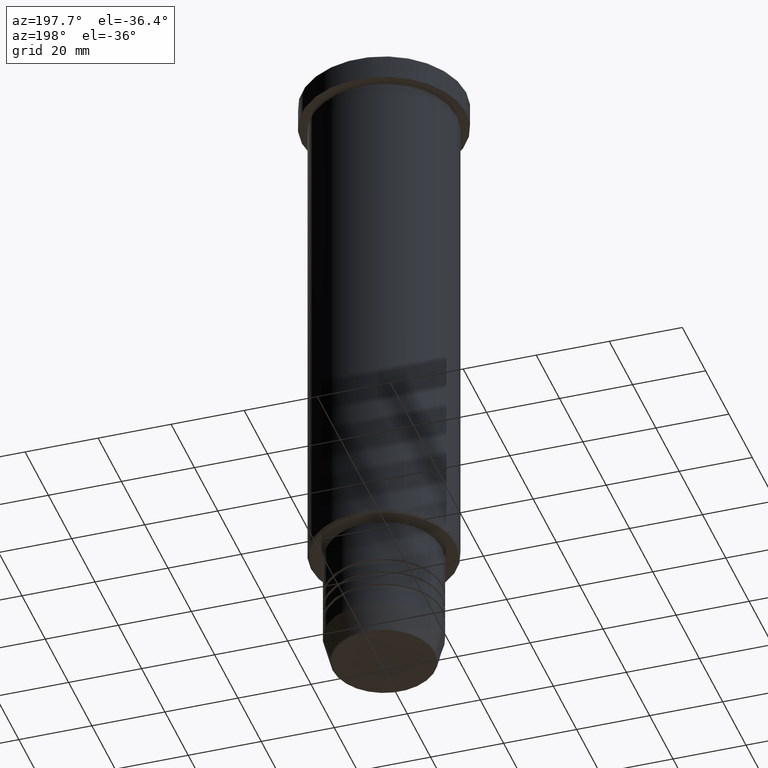
[diagram: clean part render]
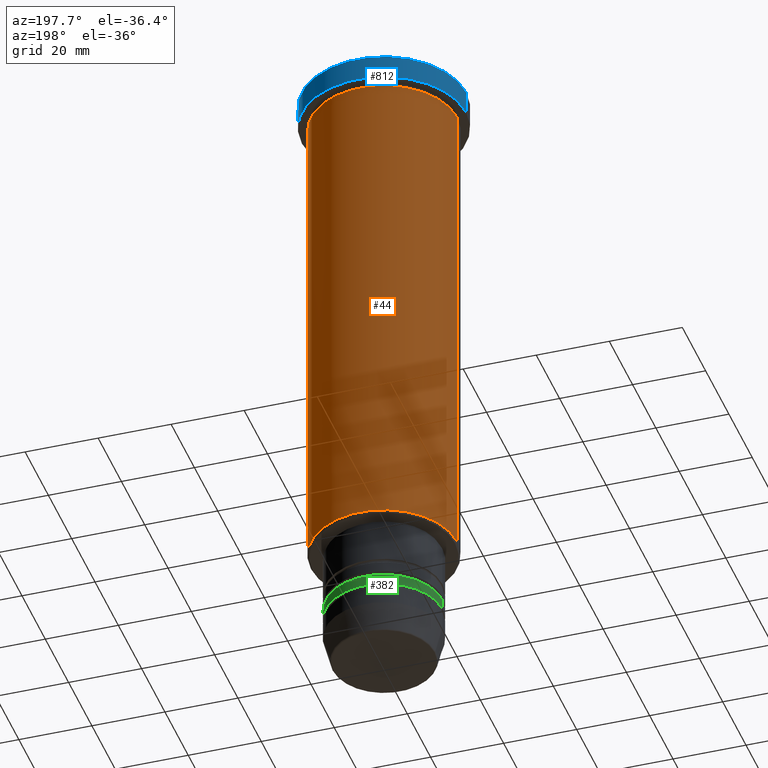
[diagram: same view with three faces highlighted in distinct colors, each labeled with its STEP entity id]
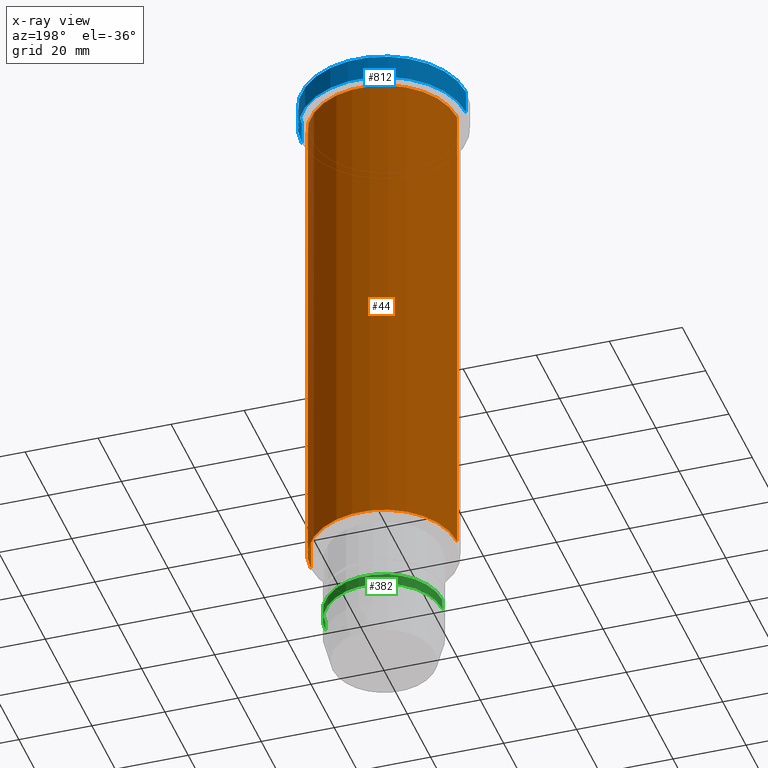
[diagram: x-ray of the same camera — body ghosted, the three highlighted faces saturated]
A machine part, auxiliary view with three faces highlighted in distinct colors.
The next image is the same camera in x-ray (body ghosted, the three faces saturated) — at least one of them is partly hidden behind the body in this view.
Their STEP definitions:

[orange] entity #44 — the highlighted cylindrical surface (partial cylindrical patch) has radius 20 mm, axis along (-0, -0, 1).
#44 = ADVANCED_FACE ( 'NONE', ( #65 ), #622, .T. ) ;
#65 = FACE_OUTER_BOUND ( 'NONE', #304, .T. ) ;
#74 = CARTESIAN_POINT ( 'NONE',  ( 0.000000000000000000, 0.000000000000000000, -7.999999999999994671 ) ) ;
#96 = DIRECTION ( 'NONE',  ( -1.000000000000000000, 0.000000000000000000, 0.000000000000000000 ) ) ;
#143 = VERTEX_POINT ( 'NONE', #239 ) ;
#162 = CARTESIAN_POINT ( 'NONE',  ( 0.000000000000000000, 0.000000000000000000, -145.5000000000000284 ) ) ;
#165 = EDGE_CURVE ( 'NONE', #1138, #813, #336, .T. ) ;
#217 = VECTOR ( 'NONE', #346, 1000.000000000000000 ) ;
#228 = CARTESIAN_POINT ( 'NONE',  ( 20.00000000000000000, 0.000000000000000000, -7.999999999999994671 ) ) ;
#239 = CARTESIAN_POINT ( 'NONE',  ( -20.00000000000000000, 2.449293598294706513E-15, -7.999999999999994671 ) ) ;
#304 = EDGE_LOOP ( 'NONE', ( #834, #1172, #1148, #914 ) ) ;
#332 = DIRECTION ( 'NONE',  ( 1.000000000000000000, 0.000000000000000000, 0.000000000000000000 ) ) ;
#336 = CIRCLE ( 'NONE', #1142, 20.00000000000000355 ) ;
#343 = DIRECTION ( 'NONE',  ( 1.000000000000000000, 0.000000000000000000, 0.000000000000000000 ) ) ;
#346 = DIRECTION ( 'NONE',  ( -0.000000000000000000, -0.000000000000000000, 1.000000000000000000 ) ) ;
#350 = EDGE_CURVE ( 'NONE', #1138, #1082, #434, .T. ) ;
#434 = LINE ( 'NONE', #797, #217 ) ;
#468 = EDGE_CURVE ( 'NONE', #813, #143, #487, .T. ) ;
#487 = LINE ( 'NONE', #1130, #902 ) ;
#580 = EDGE_CURVE ( 'NONE', #1082, #143, #798, .T. ) ;
#588 = AXIS2_PLACEMENT_3D ( 'NONE', #74, #1180, #343 ) ;
#622 = CYLINDRICAL_SURFACE ( 'NONE', #921, 20.00000000000000355 ) ;
#713 = DIRECTION ( 'NONE',  ( -0.000000000000000000, -0.000000000000000000, 1.000000000000000000 ) ) ;
#724 = CARTESIAN_POINT ( 'NONE',  ( -20.00000000000000355, 2.449293598294706907E-15, -145.5000000000000284 ) ) ;
#741 = DIRECTION ( 'NONE',  ( -0.000000000000000000, -0.000000000000000000, 1.000000000000000000 ) ) ;
#797 = CARTESIAN_POINT ( 'NONE',  ( 20.00000000000000355, 0.000000000000000000, 0.000000000000000000 ) ) ;
#798 = CIRCLE ( 'NONE', #588, 20.00000000000000000 ) ;
#813 = VERTEX_POINT ( 'NONE', #724 ) ;
#834 = ORIENTED_EDGE ( 'NONE', *, *, #165, .T. ) ;
#837 = DIRECTION ( 'NONE',  ( -0.000000000000000000, -0.000000000000000000, 1.000000000000000000 ) ) ;
#888 = CARTESIAN_POINT ( 'NONE',  ( 20.00000000000000355, 0.000000000000000000, -145.5000000000000284 ) ) ;
#902 = VECTOR ( 'NONE', #837, 1000.000000000000000 ) ;
#914 = ORIENTED_EDGE ( 'NONE', *, *, #350, .F. ) ;
#921 = AXIS2_PLACEMENT_3D ( 'NONE', #1170, #713, #332 ) ;
#1082 = VERTEX_POINT ( 'NONE', #228 ) ;
#1130 = CARTESIAN_POINT ( 'NONE',  ( -20.00000000000000355, 2.449293598294706907E-15, 0.000000000000000000 ) ) ;
#1138 = VERTEX_POINT ( 'NONE', #888 ) ;
#1142 = AXIS2_PLACEMENT_3D ( 'NONE', #162, #741, #96 ) ;
#1148 = ORIENTED_EDGE ( 'NONE', *, *, #580, .F. ) ;
#1170 = CARTESIAN_POINT ( 'NONE',  ( 0.000000000000000000, 0.000000000000000000, 0.000000000000000000 ) ) ;
#1172 = ORIENTED_EDGE ( 'NONE', *, *, #468, .T. ) ;
#1180 = DIRECTION ( 'NONE',  ( -0.000000000000000000, -0.000000000000000000, 1.000000000000000000 ) ) ;

[blue] entity #812 — the highlighted cylindrical surface (partial cylindrical patch) has radius 22.5 mm, axis along (-0, -0, 1).
#9 = VERTEX_POINT ( 'NONE', #365 ) ;
#21 = DIRECTION ( 'NONE',  ( 1.000000000000000000, 0.000000000000000000, 0.000000000000000000 ) ) ;
#23 = EDGE_LOOP ( 'NONE', ( #989, #658, #791, #1026 ) ) ;
#36 = CIRCLE ( 'NONE', #703, 22.50000000000000000 ) ;
#94 = CYLINDRICAL_SURFACE ( 'NONE', #1106, 22.50000000000000000 ) ;
#102 = VECTOR ( 'NONE', #907, 1000.000000000000000 ) ;
#126 = LINE ( 'NONE', #852, #587 ) ;
#164 = CARTESIAN_POINT ( 'NONE',  ( 22.50000000000000000, 0.000000000000000000, -6.999999999999995559 ) ) ;
#175 = EDGE_CURVE ( 'NONE', #360, #1000, #469, .T. ) ;
#196 = CARTESIAN_POINT ( 'NONE',  ( 0.000000000000000000, 0.000000000000000000, -0.4999999999999935052 ) ) ;
#256 = EDGE_CURVE ( 'NONE', #9, #822, #126, .T. ) ;
#273 = CARTESIAN_POINT ( 'NONE',  ( 0.000000000000000000, 0.000000000000000000, -6.999999999999995559 ) ) ;
#277 = CARTESIAN_POINT ( 'NONE',  ( 22.50000000000000000, 0.000000000000000000, 0.000000000000000000 ) ) ;
#360 = VERTEX_POINT ( 'NONE', #164 ) ;
#365 = CARTESIAN_POINT ( 'NONE',  ( -22.50000000000000000, 2.755455298081544778E-15, -6.999999999999995559 ) ) ;
#469 = LINE ( 'NONE', #277, #102 ) ;
#473 = DIRECTION ( 'NONE',  ( -0.000000000000000000, -0.000000000000000000, 1.000000000000000000 ) ) ;
#587 = VECTOR ( 'NONE', #1137, 1000.000000000000000 ) ;
#597 = EDGE_CURVE ( 'NONE', #822, #1000, #649, .T. ) ;
#628 = CARTESIAN_POINT ( 'NONE',  ( -22.50000000000000000, 2.755455298081544778E-15, -0.4999999999999935052 ) ) ;
#638 = DIRECTION ( 'NONE',  ( -0.000000000000000000, -0.000000000000000000, 1.000000000000000000 ) ) ;
#649 = CIRCLE ( 'NONE', #1027, 22.50000000000000000 ) ;
#658 = ORIENTED_EDGE ( 'NONE', *, *, #256, .T. ) ;
#667 = DIRECTION ( 'NONE',  ( 0.000000000000000000, 0.000000000000000000, -1.000000000000000000 ) ) ;
#703 = AXIS2_PLACEMENT_3D ( 'NONE', #273, #638, #997 ) ;
#791 = ORIENTED_EDGE ( 'NONE', *, *, #597, .T. ) ;
#812 = ADVANCED_FACE ( 'NONE', ( #1100 ), #94, .T. ) ;
#822 = VERTEX_POINT ( 'NONE', #628 ) ;
#828 = DIRECTION ( 'NONE',  ( 1.000000000000000000, 0.000000000000000000, 0.000000000000000000 ) ) ;
#852 = CARTESIAN_POINT ( 'NONE',  ( -22.50000000000000000, 2.755455298081544778E-15, 0.000000000000000000 ) ) ;
#907 = DIRECTION ( 'NONE',  ( -0.000000000000000000, -0.000000000000000000, 1.000000000000000000 ) ) ;
#989 = ORIENTED_EDGE ( 'NONE', *, *, #1124, .T. ) ;
#997 = DIRECTION ( 'NONE',  ( 1.000000000000000000, 0.000000000000000000, 0.000000000000000000 ) ) ;
#1000 = VERTEX_POINT ( 'NONE', #1153 ) ;
#1026 = ORIENTED_EDGE ( 'NONE', *, *, #175, .F. ) ;
#1027 = AXIS2_PLACEMENT_3D ( 'NONE', #196, #667, #21 ) ;
#1100 = FACE_OUTER_BOUND ( 'NONE', #23, .T. ) ;
#1106 = AXIS2_PLACEMENT_3D ( 'NONE', #1177, #473, #828 ) ;
#1124 = EDGE_CURVE ( 'NONE', #360, #9, #36, .T. ) ;
#1137 = DIRECTION ( 'NONE',  ( -0.000000000000000000, -0.000000000000000000, 1.000000000000000000 ) ) ;
#1153 = CARTESIAN_POINT ( 'NONE',  ( 22.50000000000000000, 0.000000000000000000, -0.4999999999999935052 ) ) ;
#1177 = CARTESIAN_POINT ( 'NONE',  ( 0.000000000000000000, 0.000000000000000000, 0.000000000000000000 ) ) ;

[green] entity #382 — the highlighted cylindrical surface (partial cylindrical patch) has radius 16 mm, axis along (-0, -0, 1).
#10 = DIRECTION ( 'NONE',  ( 1.000000000000000000, 0.000000000000000000, 0.000000000000000000 ) ) ;
#35 = VERTEX_POINT ( 'NONE', #349 ) ;
#49 = AXIS2_PLACEMENT_3D ( 'NONE', #182, #735, #10 ) ;
#66 = CIRCLE ( 'NONE', #383, 16.00000000000000000 ) ;
#83 = FACE_OUTER_BOUND ( 'NONE', #783, .T. ) ;
#114 = CARTESIAN_POINT ( 'NONE',  ( 0.000000000000000000, 0.000000000000000000, 0.000000000000000000 ) ) ;
#137 = ORIENTED_EDGE ( 'NONE', *, *, #218, .F. ) ;
#153 = LINE ( 'NONE', #1070, #206 ) ;
#182 = CARTESIAN_POINT ( 'NONE',  ( 0.000000000000000000, 0.000000000000000000, -166.4999999999999716 ) ) ;
#206 = VECTOR ( 'NONE', #452, 1000.000000000000000 ) ;
#212 = EDGE_CURVE ( 'NONE', #980, #35, #485, .T. ) ;
#218 = EDGE_CURVE ( 'NONE', #257, #35, #66, .T. ) ;
#257 = VERTEX_POINT ( 'NONE', #315 ) ;
#285 = ORIENTED_EDGE ( 'NONE', *, *, #1054, .F. ) ;
#315 = CARTESIAN_POINT ( 'NONE',  ( 16.00000000000000000, 0.000000000000000000, -163.5000000000000000 ) ) ;
#329 = ORIENTED_EDGE ( 'NONE', *, *, #212, .T. ) ;
#349 = CARTESIAN_POINT ( 'NONE',  ( -16.00000000000000000, 1.959434878635765131E-15, -163.5000000000000000 ) ) ;
#382 = ADVANCED_FACE ( 'NONE', ( #83 ), #1116, .T. ) ;
#383 = AXIS2_PLACEMENT_3D ( 'NONE', #820, #956, #676 ) ;
#452 = DIRECTION ( 'NONE',  ( -0.000000000000000000, -0.000000000000000000, 1.000000000000000000 ) ) ;
#485 = LINE ( 'NONE', #637, #816 ) ;
#499 = ORIENTED_EDGE ( 'NONE', *, *, #619, .T. ) ;
#511 = CARTESIAN_POINT ( 'NONE',  ( -16.00000000000000000, 1.959434878635765131E-15, -166.4999999999999716 ) ) ;
#529 = CARTESIAN_POINT ( 'NONE',  ( 16.00000000000000000, 0.000000000000000000, -166.4999999999999716 ) ) ;
#619 = EDGE_CURVE ( 'NONE', #1101, #980, #742, .T. ) ;
#637 = CARTESIAN_POINT ( 'NONE',  ( -16.00000000000000000, 1.959434878635765131E-15, 0.000000000000000000 ) ) ;
#676 = DIRECTION ( 'NONE',  ( 1.000000000000000000, 0.000000000000000000, 0.000000000000000000 ) ) ;
#735 = DIRECTION ( 'NONE',  ( -0.000000000000000000, -0.000000000000000000, 1.000000000000000000 ) ) ;
#742 = CIRCLE ( 'NONE', #49, 16.00000000000000000 ) ;
#783 = EDGE_LOOP ( 'NONE', ( #499, #329, #137, #285 ) ) ;
#816 = VECTOR ( 'NONE', #996, 1000.000000000000000 ) ;
#820 = CARTESIAN_POINT ( 'NONE',  ( 0.000000000000000000, 0.000000000000000000, -163.5000000000000000 ) ) ;
#827 = DIRECTION ( 'NONE',  ( 1.000000000000000000, 0.000000000000000000, 0.000000000000000000 ) ) ;
#943 = AXIS2_PLACEMENT_3D ( 'NONE', #114, #1136, #827 ) ;
#956 = DIRECTION ( 'NONE',  ( -0.000000000000000000, -0.000000000000000000, 1.000000000000000000 ) ) ;
#980 = VERTEX_POINT ( 'NONE', #511 ) ;
#996 = DIRECTION ( 'NONE',  ( -0.000000000000000000, -0.000000000000000000, 1.000000000000000000 ) ) ;
#1054 = EDGE_CURVE ( 'NONE', #1101, #257, #153, .T. ) ;
#1070 = CARTESIAN_POINT ( 'NONE',  ( 16.00000000000000000, 0.000000000000000000, 0.000000000000000000 ) ) ;
#1101 = VERTEX_POINT ( 'NONE', #529 ) ;
#1116 = CYLINDRICAL_SURFACE ( 'NONE', #943, 16.00000000000000000 ) ;
#1136 = DIRECTION ( 'NONE',  ( -0.000000000000000000, -0.000000000000000000, 1.000000000000000000 ) ) ;